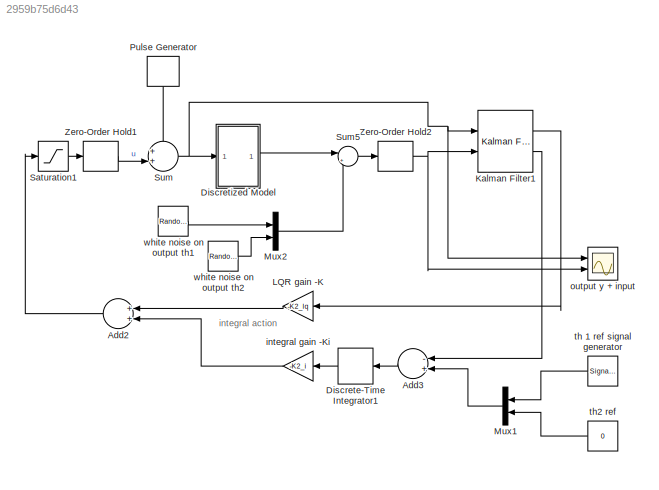
MODEL slx_2959b75d6d43
KIND model
CONFIG AbsTol = auto
CONFIG EnableMultiTasking = off
CONFIG FixedStep = auto
CONFIG InitFcn = lindiscrmodel
CONFIG MaxStep = auto
CONFIG MinStep = auto
CONFIG RelTol = 1e-3
CONFIG SampleTimeConstraint = Unconstrained
CONFIG Solver = VariableStepAuto
CONFIG SolverName = VariableStepAuto
CONFIG StartTime = 0.0
CONFIG StopTime = 15
BLOCK [Sum] Add2
  InputSameDT = off
  OutDataTypeStr = Inherit: Inherit via internal rule
  Ports = [2, 1]
  SaturateOnIntegerOverflow = off
BLOCK [Sum] Add3
  InputSameDT = off
  Inputs = -+
  OutDataTypeStr = Inherit: Inherit via internal rule
  Ports = [2, 1]
  SaturateOnIntegerOverflow = off
BLOCK [DiscreteIntegrator] Discrete-Time Integrator1
  ICPrevOutput = DiscIntNeverNeededParam
  ICPrevScaledInput = DiscIntNeverNeededParam
  InitialConditionSetting = Auto
  Ports = [1, 1]
  SampleTime = Ts
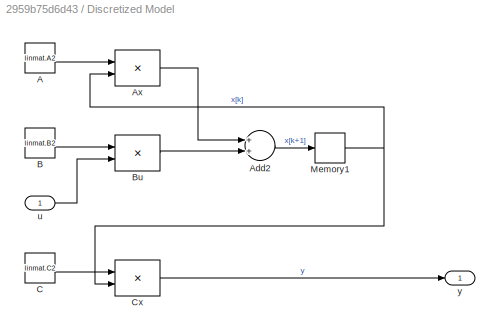
BLOCK [SubSystem] Discretized Model
  Ports = [1, 1]
  RequestExecContextInheritance = off
BLOCK [Constant] Discretized Model/A
  SampleTime = Ts
  Value = linmat.A2
BLOCK [Sum] Discretized Model/Add2
  InputSameDT = off
  OutDataTypeStr = Inherit: Inherit via internal rule
  Ports = [2, 1]
  SaturateOnIntegerOverflow = off
BLOCK [Product] Discretized Model/Ax
  InputSameDT = off
  Multiplication = Matrix(*)
  OutDataTypeStr = Inherit: Inherit via internal rule
  Ports = [2, 1]
  RndMeth = Floor
  SaturateOnIntegerOverflow = off
BLOCK [Constant] Discretized Model/B
  SampleTime = Ts
  Value = linmat.B2
BLOCK [Product] Discretized Model/Bu
  InputSameDT = off
  Multiplication = Matrix(*)
  OutDataTypeStr = Inherit: Inherit via internal rule
  Ports = [2, 1]
  RndMeth = Floor
  SaturateOnIntegerOverflow = off
BLOCK [Constant] Discretized Model/C
  SampleTime = Ts
  Value = linmat.C2
BLOCK [Product] Discretized Model/Cx
  InputSameDT = off
  Multiplication = Matrix(*)
  OutDataTypeStr = Inherit: Inherit via internal rule
  Ports = [2, 1]
  RndMeth = Floor
  SaturateOnIntegerOverflow = off
BLOCK [Memory] Discretized Model/Memory1
  InitialCondition = [0;0.05;0;0]
BLOCK [Inport] Discretized Model/u
  IconDisplay = Port number
BLOCK [Outport] Discretized Model/y
  IconDisplay = Port number
BLOCK [Reference] Kalman Filter1  REF=ctrlSharedLib/Kalman Filter
  Ports = [2, 2]
  SourceBlock = ctrlSharedLib/Kalman Filter
  SourceProductBaseCode = CT
  SourceProductName = Control System Toolbox
  SourceType = ctrlKalmanFilter
BLOCK [Gain] LQR gain -K
  Gain = -K2_lq
  Multiplication = Matrix(K*u)
  OutDataTypeStr = Inherit: Inherit via internal rule
  ParamDataTypeStr = Inherit: Inherit via internal rule
  SaturateOnIntegerOverflow = off
BLOCK [Mux] Mux1
  DisplayOption = bar
  Inputs = 2
  Ports = [2, 1]
BLOCK [Mux] Mux2
  DisplayOption = bar
  Inputs = 2
  Ports = [2, 1]
BLOCK [DiscretePulseGenerator] Pulse Generator
  Period = 10
  Ports = [0, 1]
  PulseType = Time based
  PulseWidth = 5
BLOCK [Saturate] Saturation1
  InputPortMap = u0
  LowerLimit = -1
  Ports = [1, 1]
  UpperLimit = 1
BLOCK [Sum] Sum
  IconShape = round
  InputSameDT = off
  Inputs = ++|
  OutDataTypeStr = Inherit: Inherit via internal rule
  Ports = [2, 1]
  SaturateOnIntegerOverflow = off
BLOCK [Sum] Sum5
  IconShape = round
  InputSameDT = off
  Inputs = |++
  OutDataTypeStr = Inherit: Inherit via internal rule
  Ports = [2, 1]
  SaturateOnIntegerOverflow = off
BLOCK [ZeroOrderHold] Zero-Order Hold1
  SampleTime = Ts
BLOCK [ZeroOrderHold] Zero-Order Hold2
  SampleTime = Ts
BLOCK [Gain] integral gain -Ki
  Gain = -K2_i
  Multiplication = Matrix(K*u)
  OutDataTypeStr = Inherit: Inherit via internal rule
  ParamDataTypeStr = Inherit: Inherit via internal rule
  SaturateOnIntegerOverflow = off
BLOCK [Scope] output y + input
  Floating = off
  NumInputPorts = 2
  Ports = [2]
  ScopeSpecificationString = Simulink.scopes.TimeScopeBlockCfg('CurrentConfiguration', extmgr.ConfigurationSet(extmgr.Configuration('Core','General UI',true),extmgr.Configuration('Core','Source UI',true),extmgr.Configuration('Sources','WiredSimulink',true,'DataLoggingVariableName','ScopeData3'),extmgr.Configuration('Visuals','Time Domain',true,'SerializedDisplays',{struct('MinYLimReal','-0.43938','MaxYLimReal','0.14784','YLab...<+1548ch>
BLOCK [SignalGenerator] th 1 ref signal generator
  Amplitude = 0
  Frequency = 1/15
  Ports = [0, 1]
BLOCK [Constant] th2 ref
  SampleTime = Ts
  Value = 0
BLOCK [RandomNumber] white noise on output th1
  SampleTime = 0.01
  Variance = 1e-7
BLOCK [RandomNumber] white noise on output th2
  SampleTime = 0.01
  Variance = 1e-7
ANNOTATION (root): integral action
LINE Add2:1 -> Saturation1:1
LINE Add3:1 -> Discrete-Time Integrator1:1
LINE Discrete-Time Integrator1:1 -> integral gain -Ki:1
LINE Discretized Model/A:1 -> Discretized Model/Ax:1
LINE Discretized Model/Add2:1 -> Discretized Model/Memory1:1
LINE Discretized Model/Ax:1 -> Discretized Model/Add2:1
LINE Discretized Model/B:1 -> Discretized Model/Bu:1
LINE Discretized Model/Bu:1 -> Discretized Model/Add2:2
LINE Discretized Model/C:1 -> Discretized Model/Cx:1
LINE Discretized Model/Cx:1 -> Discretized Model/y:1
NET Discretized Model/Memory1:1 -> Discretized Model/Ax:2, Discretized Model/Cx:2
LINE Discretized Model/u:1 -> Discretized Model/Bu:2
LINE Discretized Model:1 -> Sum5:1
LINE Kalman Filter1:1 -> LQR gain -K:1
LINE Kalman Filter1:2 -> Add3:1
LINE LQR gain -K:1 -> Add2:1
LINE Mux1:1 -> Add3:2
LINE Mux2:1 -> Sum5:2
LINE Pulse Generator:1 -> Sum:1
LINE Saturation1:1 -> Zero-Order Hold1:1
LINE Sum5:1 -> Zero-Order Hold2:1
NET Sum:1 -> Discretized Model:1, Kalman Filter1:1, output y + input:1
LINE Zero-Order Hold1:1 -> Sum:2
NET Zero-Order Hold2:1 -> Kalman Filter1:2, output y + input:2
LINE integral gain -Ki:1 -> Add2:2
LINE th 1 ref signal generator:1 -> Mux1:1
LINE th2 ref:1 -> Mux1:2
LINE white noise on output th1:1 -> Mux2:1
LINE white noise on output th2:1 -> Mux2:2
note: NET lines group one-source signal fan-out (src -> all destinations, sorted); 1:1 wires keep LINE
